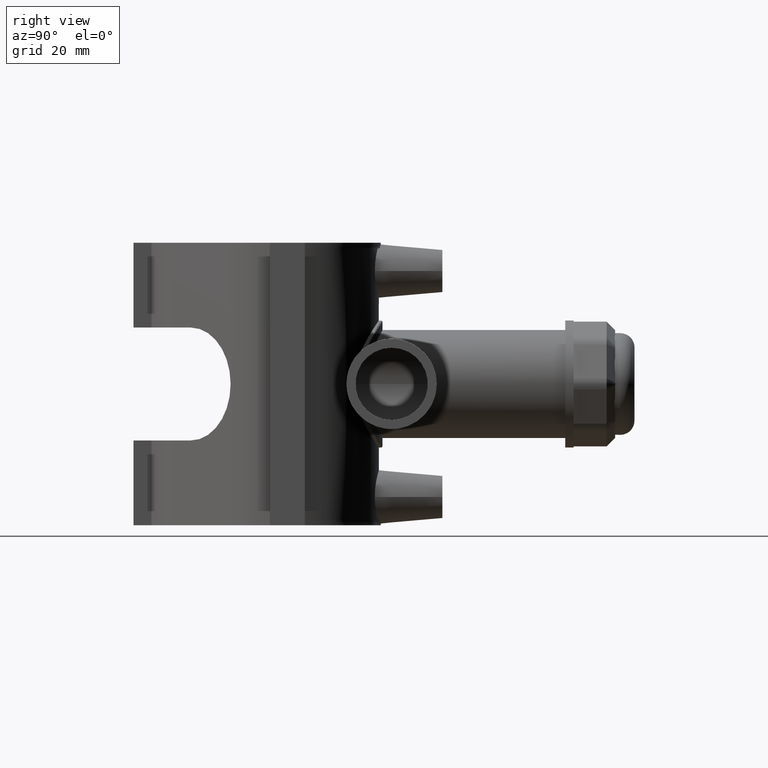
[diagram: clean part render]
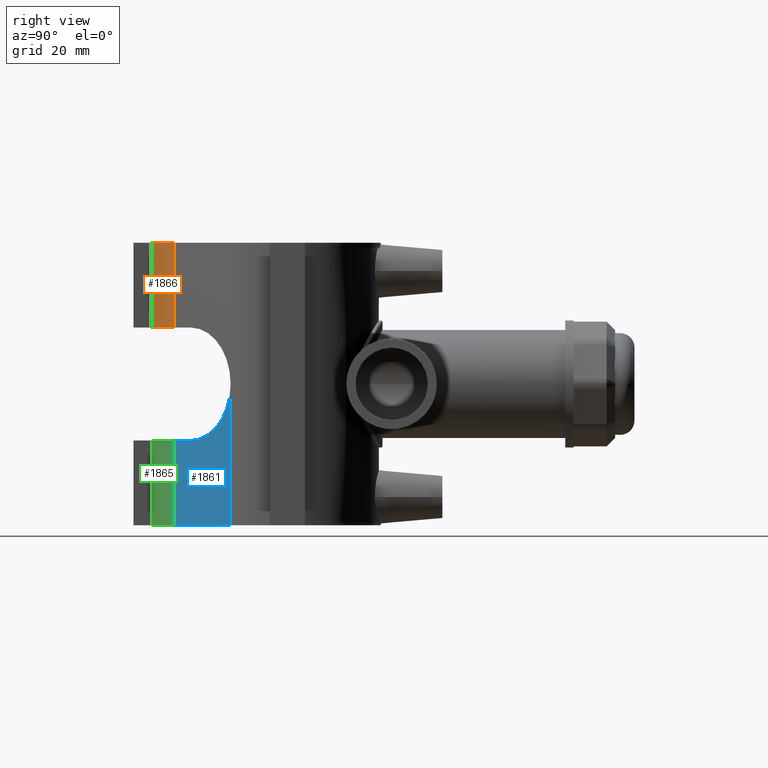
[diagram: same view with three faces highlighted in distinct colors, each labeled with its STEP entity id]
A machine part, right view with three faces highlighted in distinct colors.
Their STEP definitions:

[orange] entity #1866 — the highlighted cylindrical surface (partial cylindrical patch) has radius 28.2769 mm, axis along (0, 0, -1).
#154=CIRCLE('',#2038,28.2768532549102);
#165=CIRCLE('',#2064,28.2768532549102);
#199=CYLINDRICAL_SURFACE('',#2063,28.2768532549102);
#303=FACE_OUTER_BOUND('',#437,.T.);
#437=EDGE_LOOP('',(#1638,#1639,#1640,#1641));
#572=LINE('',#3652,#717);
#575=LINE('',#3659,#720);
#717=VECTOR('',#2565,30.);
#720=VECTOR('',#2572,30.);
#872=VERTEX_POINT('',#3574);
#873=VERTEX_POINT('',#3576);
#899=VERTEX_POINT('',#3650);
#901=VERTEX_POINT('',#3658);
#1111=EDGE_CURVE('',#873,#872,#154,.T.);
#1149=EDGE_CURVE('',#899,#872,#572,.T.);
#1152=EDGE_CURVE('',#901,#873,#575,.T.);
#1155=EDGE_CURVE('',#901,#899,#165,.T.);
#1638=ORIENTED_EDGE('',*,*,#1111,.T.);
#1639=ORIENTED_EDGE('',*,*,#1149,.F.);
#1640=ORIENTED_EDGE('',*,*,#1155,.F.);
#1641=ORIENTED_EDGE('',*,*,#1152,.T.);
#1866=ADVANCED_FACE('',(#303),#199,.T.);
#2038=AXIS2_PLACEMENT_3D('',#3577,#2495,#2496);
#2063=AXIS2_PLACEMENT_3D('',#3663,#2578,#2579);
#2064=AXIS2_PLACEMENT_3D('',#3664,#2580,#2581);
#2495=DIRECTION('center_axis',(1.57009246054809E-16,1.57009245681946E-16,
1.));
#2496=DIRECTION('ref_axis',(-0.0850583592120177,-0.996375970970878,0.));
#2565=DIRECTION('',(0.,0.,-1.));
#2572=DIRECTION('',(0.,0.,-1.));
#2578=DIRECTION('center_axis',(0.,0.,-1.));
#2579=DIRECTION('ref_axis',(-0.0850583592120177,-0.996375970970878,0.));
#2580=DIRECTION('center_axis',(0.,0.,1.));
#2581=DIRECTION('ref_axis',(-0.0850583592120177,-0.996375970970878,0.));
#3574=CARTESIAN_POINT('',(-9.49665412974809E-8,-39.9895094218111,20.));
#3576=CARTESIAN_POINT('',(-16.1999374999305,-48.0158145048289,20.));
#3577=CARTESIAN_POINT('Origin',(-19.9947547583888,-19.9947547109055,20.));
#3650=CARTESIAN_POINT('',(-9.49665412974809E-8,-39.9895094218111,50.));
#3652=CARTESIAN_POINT('',(-9.49665412974809E-8,-39.9895094218111,50.));
#3658=CARTESIAN_POINT('',(-16.1999374999305,-48.0158145048289,50.));
#3659=CARTESIAN_POINT('',(-16.1999374999305,-48.0158145048289,50.));
#3663=CARTESIAN_POINT('Origin',(-19.9947547583888,-19.9947547109055,50.));
#3664=CARTESIAN_POINT('Origin',(-19.9947547583888,-19.9947547109055,50.));

[blue] entity #1861 — the highlighted planar face has unit normal (0.7071, -0.7071, 0).
#160=CIRCLE('',#2046,20.);
#298=FACE_OUTER_BOUND('',#432,.T.);
#432=EDGE_LOOP('',(#1616,#1617,#1618,#1619,#1620));
#551=LINE('',#3600,#696);
#567=LINE('',#3643,#712);
#568=LINE('',#3645,#713);
#569=LINE('',#3646,#714);
#696=VECTOR('',#2512,8.27685332206164);
#712=VECTOR('',#2558,30.);
#713=VECTOR('',#2559,28.2768533220617);
#714=VECTOR('',#2560,50.);
#883=VERTEX_POINT('',#3597);
#884=VERTEX_POINT('',#3599);
#886=VERTEX_POINT('',#3606);
#896=VERTEX_POINT('',#3642);
#897=VERTEX_POINT('',#3644);
#1122=EDGE_CURVE('',#884,#883,#551,.T.);
#1126=EDGE_CURVE('',#886,#884,#160,.T.);
#1144=EDGE_CURVE('',#883,#896,#567,.T.);
#1145=EDGE_CURVE('',#897,#896,#568,.T.);
#1146=EDGE_CURVE('',#886,#897,#569,.T.);
#1616=ORIENTED_EDGE('',*,*,#1126,.T.);
#1617=ORIENTED_EDGE('',*,*,#1122,.T.);
#1618=ORIENTED_EDGE('',*,*,#1144,.T.);
#1619=ORIENTED_EDGE('',*,*,#1145,.F.);
#1620=ORIENTED_EDGE('',*,*,#1146,.F.);
#1754=PLANE('',#2057);
#1861=ADVANCED_FACE('',(#298),#1754,.T.);
#2046=AXIS2_PLACEMENT_3D('',#3607,#2520,#2521);
#2057=AXIS2_PLACEMENT_3D('',#3641,#2556,#2557);
#2512=DIRECTION('',(-0.707106782026161,-0.707106780346934,9.99200722162641E-16));
#2520=DIRECTION('center_axis',(-0.707106780346934,0.707106782026161,0.));
#2521=DIRECTION('ref_axis',(0.707106782026161,0.707106780346934,0.));
#2556=DIRECTION('center_axis',(0.707106780346934,-0.707106782026161,0.));
#2557=DIRECTION('ref_axis',(-0.707106782026161,-0.707106780346934,0.));
#2558=DIRECTION('',(0.,0.,-1.));
#2559=DIRECTION('',(-0.707106782026161,-0.707106780346934,0.));
#2560=DIRECTION('',(0.,0.,-1.));
#3597=CARTESIAN_POINT('',(-9.49665412974809E-8,-39.9895094218111,-20.));
#3599=CARTESIAN_POINT('',(5.85261902289901,-34.1368903178442,-20.));
#3600=CARTESIAN_POINT('',(12.9236868431606,-27.0658225143749,-20.));
#3606=CARTESIAN_POINT('',(19.9947546634223,-19.9947547109055,0.));
#3607=CARTESIAN_POINT('Origin',(5.85261902289902,-34.1368903178442,0.));
#3641=CARTESIAN_POINT('Origin',(19.9947546634223,-19.9947547109055,50.));
#3642=CARTESIAN_POINT('',(-9.49665412974809E-8,-39.9895094218111,-50.));
#3643=CARTESIAN_POINT('',(-9.49665412974809E-8,-39.9895094218111,50.));
#3644=CARTESIAN_POINT('',(19.9947546634223,-19.9947547109055,-50.));
#3645=CARTESIAN_POINT('',(15.1548710019658,-24.8346383608683,-50.));
#3646=CARTESIAN_POINT('',(19.9947546634223,-19.9947547109055,50.));

[green] entity #1865 — the highlighted cylindrical surface (partial cylindrical patch) has radius 28.2769 mm, axis along (0, 0, -1).
#157=CIRCLE('',#2042,28.2768532549102);
#164=CIRCLE('',#2062,28.2768532549102);
#198=CYLINDRICAL_SURFACE('',#2061,28.2768532549102);
#302=FACE_OUTER_BOUND('',#436,.T.);
#436=EDGE_LOOP('',(#1634,#1635,#1636,#1637));
#567=LINE('',#3643,#712);
#574=LINE('',#3656,#719);
#712=VECTOR('',#2558,30.);
#719=VECTOR('',#2569,30.);
#882=VERTEX_POINT('',#3595);
#883=VERTEX_POINT('',#3597);
#896=VERTEX_POINT('',#3642);
#900=VERTEX_POINT('',#3654);
#1121=EDGE_CURVE('',#883,#882,#157,.T.);
#1144=EDGE_CURVE('',#883,#896,#567,.T.);
#1151=EDGE_CURVE('',#882,#900,#574,.T.);
#1154=EDGE_CURVE('',#896,#900,#164,.T.);
#1634=ORIENTED_EDGE('',*,*,#1121,.T.);
#1635=ORIENTED_EDGE('',*,*,#1151,.T.);
#1636=ORIENTED_EDGE('',*,*,#1154,.F.);
#1637=ORIENTED_EDGE('',*,*,#1144,.F.);
#1865=ADVANCED_FACE('',(#302),#198,.T.);
#2042=AXIS2_PLACEMENT_3D('',#3598,#2510,#2511);
#2061=AXIS2_PLACEMENT_3D('',#3661,#2574,#2575);
#2062=AXIS2_PLACEMENT_3D('',#3662,#2576,#2577);
#2510=DIRECTION('center_axis',(-7.06541607246642E-16,-7.06541605568756E-16,
-1.));
#2511=DIRECTION('ref_axis',(-0.0850583592120177,-0.996375970970878,0.));
#2558=DIRECTION('',(0.,0.,-1.));
#2569=DIRECTION('',(0.,0.,-1.));
#2574=DIRECTION('center_axis',(0.,0.,-1.));
#2575=DIRECTION('ref_axis',(-0.0850583592120177,-0.996375970970878,0.));
#2576=DIRECTION('center_axis',(0.,0.,-1.));
#2577=DIRECTION('ref_axis',(-0.0850583592120177,-0.996375970970878,0.));
#3595=CARTESIAN_POINT('',(-16.1999374999305,-48.0158145048289,-20.));
#3597=CARTESIAN_POINT('',(-9.49665412974809E-8,-39.9895094218111,-20.));
#3598=CARTESIAN_POINT('Origin',(-19.9947547583888,-19.9947547109055,-20.));
#3642=CARTESIAN_POINT('',(-9.49665412974809E-8,-39.9895094218111,-50.));
#3643=CARTESIAN_POINT('',(-9.49665412974809E-8,-39.9895094218111,50.));
#3654=CARTESIAN_POINT('',(-16.1999374999305,-48.0158145048289,-50.));
#3656=CARTESIAN_POINT('',(-16.1999374999305,-48.0158145048289,50.));
#3661=CARTESIAN_POINT('Origin',(-19.9947547583888,-19.9947547109055,50.));
#3662=CARTESIAN_POINT('Origin',(-19.9947547583888,-19.9947547109055,-50.));